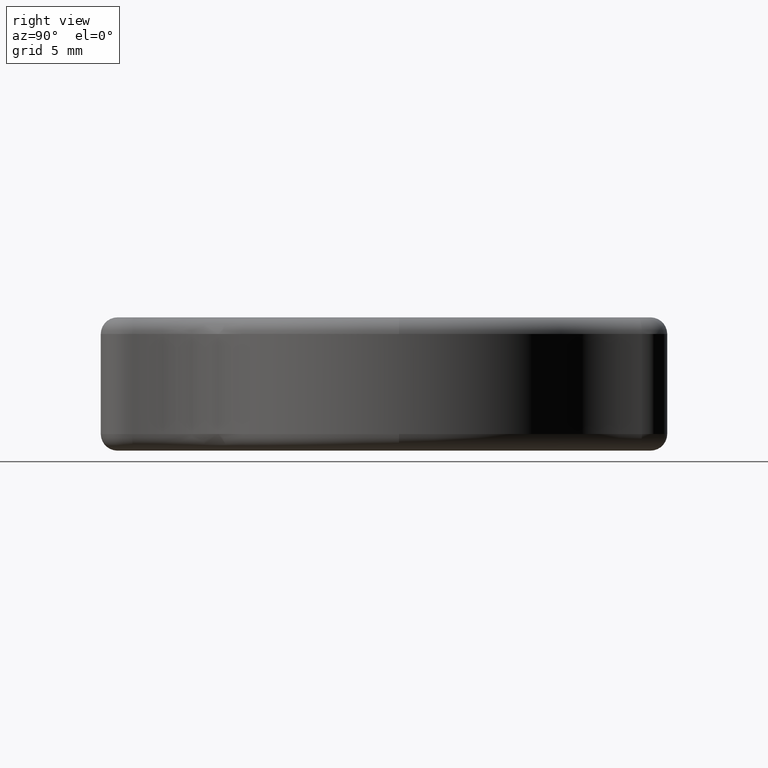
[diagram: clean part render]
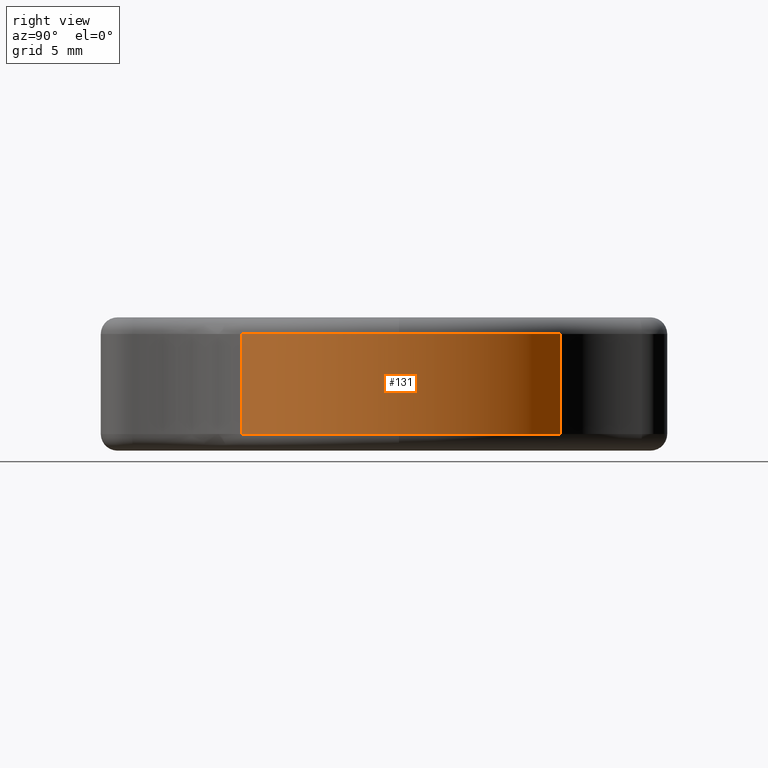
[diagram: same view with one face highlighted and labeled with its STEP entity id]
A machine part, right view. The second image highlights one B-rep face of the part: STEP entity #131.
In plain terms, the highlighted cylindrical surface (partial cylindrical patch) has radius 13.3 mm, axis along (-0, -0, -1).
Its self-contained STEP definition (entity closure, byte-faithful):
#131 = ADVANCED_FACE ( 'NONE', ( #1812 ), #2250, .T. ) ;
#207 = CARTESIAN_POINT ( 'NONE',  ( 2.223772548633339100, 1.633371797953784300, 31.00000000000000400 ) ) ;
#238 = CARTESIAN_POINT ( 'NONE',  ( 15.52377254863334200, 1.633371797953784300, 31.00000000000000400 ) ) ;
#306 = LINE ( 'NONE', #591, #1920 ) ;
#320 = VERTEX_POINT ( 'NONE', #1322 ) ;
#330 = CARTESIAN_POINT ( 'NONE',  ( 2.223772548633339100, 1.633371797953784300, 38.00000000000000700 ) ) ;
#413 = EDGE_CURVE ( 'NONE', #516, #1251, #306, .T. ) ;
#516 = VERTEX_POINT ( 'NONE', #1527 ) ;
#521 = AXIS2_PLACEMENT_3D ( 'NONE', #528, #1239, #711 ) ;
#526 = DIRECTION ( 'NONE',  ( -1.000000000000000000, 0.0000000000000000000, 0.0000000000000000000 ) ) ;
#528 = CARTESIAN_POINT ( 'NONE',  ( 2.223772548633339100, 1.633371797953784300, 37.00000000000000700 ) ) ;
#545 = CARTESIAN_POINT ( 'NONE',  ( 2.223772548633339100, 1.633371797953784300, 31.00000000000000400 ) ) ;
#581 = DIRECTION ( 'NONE',  ( 1.000000000000000000, 0.0000000000000000000, 0.0000000000000000000 ) ) ;
#591 = CARTESIAN_POINT ( 'NONE',  ( 11.33498213486267000, 11.32232735961278400, 38.00000000000000700 ) ) ;
#598 = EDGE_CURVE ( 'NONE', #320, #2016, #1531, .T. ) ;
#711 = DIRECTION ( 'NONE',  ( 1.000000000000000000, 0.0000000000000000000, 0.0000000000000000000 ) ) ;
#714 = EDGE_CURVE ( 'NONE', #516, #320, #1164, .T. ) ;
#757 = AXIS2_PLACEMENT_3D ( 'NONE', #1915, #2095, #2277 ) ;
#759 = EDGE_CURVE ( 'NONE', #1399, #1034, #1279, .T. ) ;
#806 = CIRCLE ( 'NONE', #1932, 13.30000000000000200 ) ;
#903 = CARTESIAN_POINT ( 'NONE',  ( 11.33498213486267000, 11.32232735961278400, 31.00000000000000400 ) ) ;
#927 = ORIENTED_EDGE ( 'NONE', *, *, #759, .T. ) ;
#947 = DIRECTION ( 'NONE',  ( -0.0000000000000000000, -0.0000000000000000000, -1.000000000000000000 ) ) ;
#972 = LINE ( 'NONE', #1697, #1132 ) ;
#1034 = VERTEX_POINT ( 'NONE', #238 ) ;
#1037 = EDGE_LOOP ( 'NONE', ( #2096, #927, #1119, #1120, #1231, #1678 ) ) ;
#1119 = ORIENTED_EDGE ( 'NONE', *, *, #1711, .T. ) ;
#1120 = ORIENTED_EDGE ( 'NONE', *, *, #413, .F. ) ;
#1132 = VECTOR ( 'NONE', #2224, 1000.000000000000000 ) ;
#1164 = CIRCLE ( 'NONE', #521, 13.30000000000000200 ) ;
#1168 = CARTESIAN_POINT ( 'NONE',  ( 11.58945416092057800, -7.809827232950136800, 37.00000000000000700 ) ) ;
#1231 = ORIENTED_EDGE ( 'NONE', *, *, #714, .T. ) ;
#1239 = DIRECTION ( 'NONE',  ( 0.0000000000000000000, -0.0000000000000000000, -1.000000000000000000 ) ) ;
#1245 = AXIS2_PLACEMENT_3D ( 'NONE', #330, #1406, #526 ) ;
#1251 = VERTEX_POINT ( 'NONE', #903 ) ;
#1279 = CIRCLE ( 'NONE', #1944, 13.30000000000000200 ) ;
#1321 = CARTESIAN_POINT ( 'NONE',  ( 11.58945416092057800, -7.809827232950136800, 31.00000000000000400 ) ) ;
#1322 = CARTESIAN_POINT ( 'NONE',  ( 15.52377254863334200, 1.633371797953784300, 37.00000000000000700 ) ) ;
#1399 = VERTEX_POINT ( 'NONE', #1321 ) ;
#1406 = DIRECTION ( 'NONE',  ( -0.0000000000000000000, -0.0000000000000000000, -1.000000000000000000 ) ) ;
#1527 = CARTESIAN_POINT ( 'NONE',  ( 11.33498213486267000, 11.32232735961278400, 37.00000000000000700 ) ) ;
#1531 = CIRCLE ( 'NONE', #757, 13.30000000000000200 ) ;
#1533 = EDGE_CURVE ( 'NONE', #2016, #1399, #972, .T. ) ;
#1678 = ORIENTED_EDGE ( 'NONE', *, *, #598, .T. ) ;
#1697 = CARTESIAN_POINT ( 'NONE',  ( 11.58945416092057800, -7.809827232950136800, 38.00000000000000700 ) ) ;
#1711 = EDGE_CURVE ( 'NONE', #1034, #1251, #806, .T. ) ;
#1782 = DIRECTION ( 'NONE',  ( -0.0000000000000000000, 0.0000000000000000000, 1.000000000000000000 ) ) ;
#1812 = FACE_OUTER_BOUND ( 'NONE', #1037, .T. ) ;
#1915 = CARTESIAN_POINT ( 'NONE',  ( 2.223772548633339100, 1.633371797953784300, 37.00000000000000700 ) ) ;
#1920 = VECTOR ( 'NONE', #947, 1000.000000000000000 ) ;
#1932 = AXIS2_PLACEMENT_3D ( 'NONE', #207, #2157, #581 ) ;
#1944 = AXIS2_PLACEMENT_3D ( 'NONE', #545, #1782, #1966 ) ;
#1966 = DIRECTION ( 'NONE',  ( 1.000000000000000000, 0.0000000000000000000, 0.0000000000000000000 ) ) ;
#2016 = VERTEX_POINT ( 'NONE', #1168 ) ;
#2095 = DIRECTION ( 'NONE',  ( 0.0000000000000000000, -0.0000000000000000000, -1.000000000000000000 ) ) ;
#2096 = ORIENTED_EDGE ( 'NONE', *, *, #1533, .T. ) ;
#2157 = DIRECTION ( 'NONE',  ( -0.0000000000000000000, 0.0000000000000000000, 1.000000000000000000 ) ) ;
#2224 = DIRECTION ( 'NONE',  ( -0.0000000000000000000, -0.0000000000000000000, -1.000000000000000000 ) ) ;
#2250 = CYLINDRICAL_SURFACE ( 'NONE', #1245, 13.30000000000000200 ) ;
#2277 = DIRECTION ( 'NONE',  ( 1.000000000000000000, 0.0000000000000000000, 0.0000000000000000000 ) ) ;